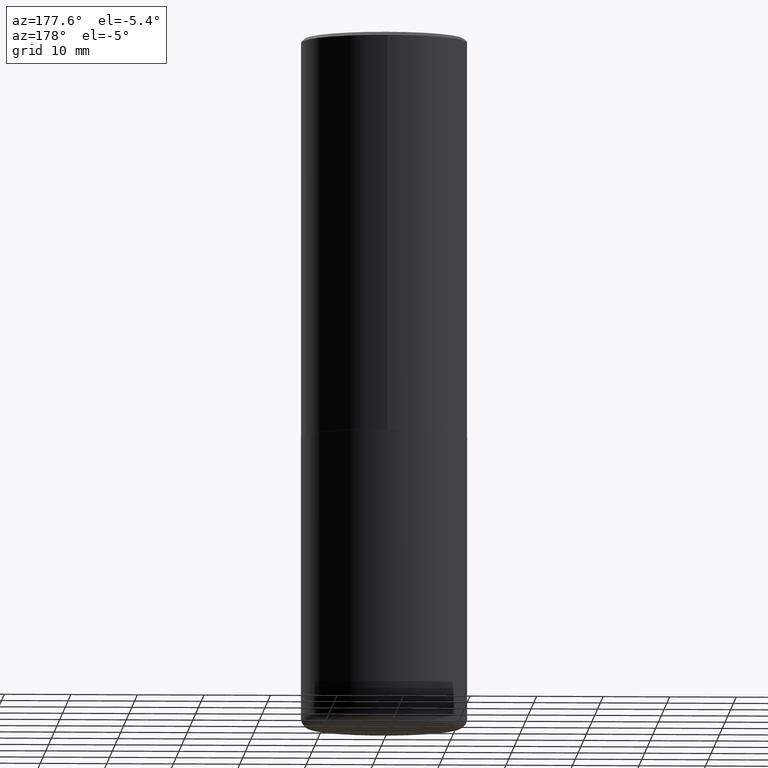
[diagram: clean part render]
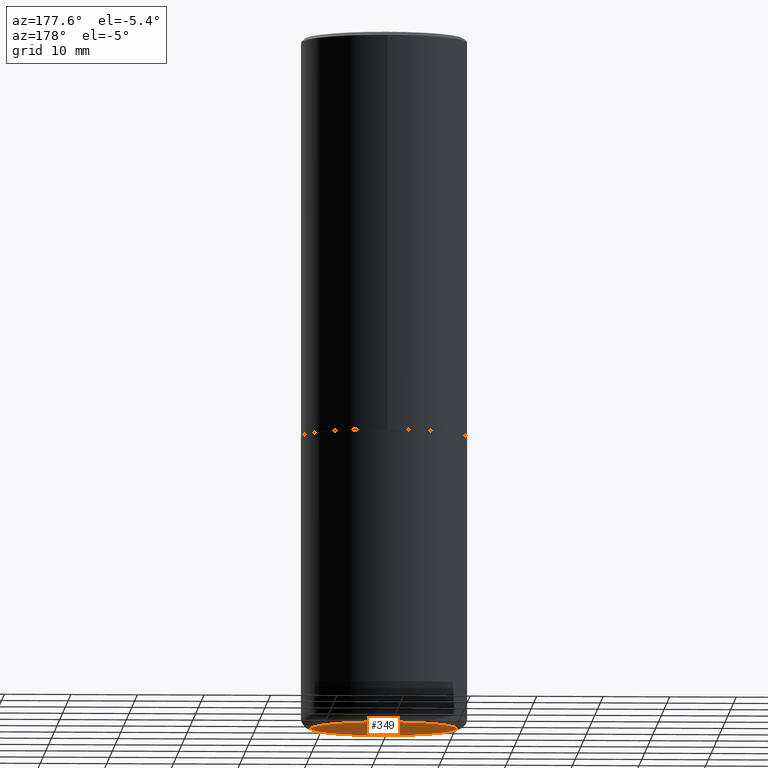
[diagram: same view with one face highlighted and labeled with its STEP entity id]
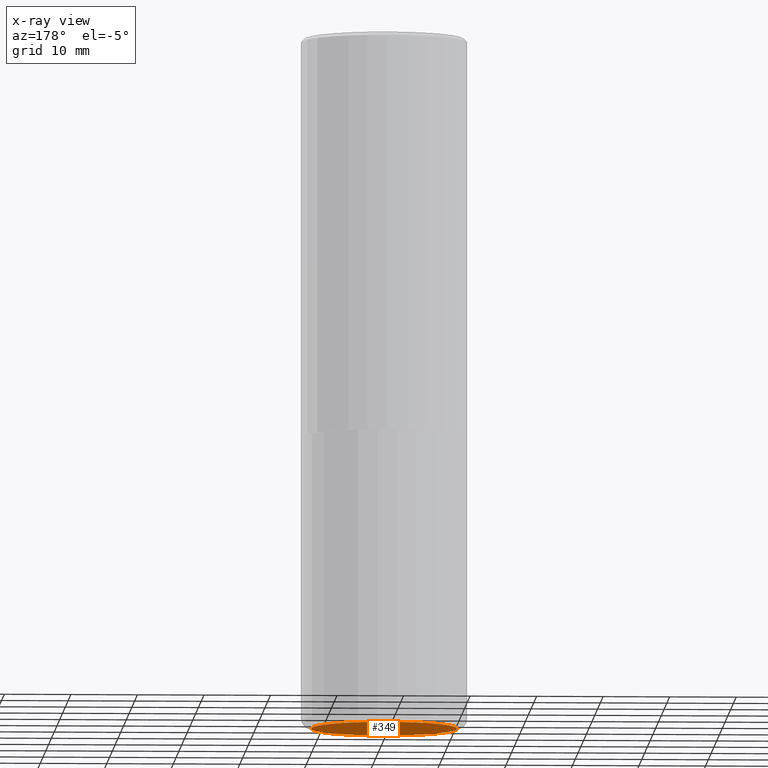
[diagram: x-ray of the same camera — body ghosted, the highlighted face saturated]
A machine part, auxiliary view. The second image highlights one B-rep face of the part: STEP entity #349.
The next image is the same camera in x-ray: the body ghosted, the highlighted face saturated — about 0% of this face is hidden behind the body in this view.
In plain terms, the highlighted planar face has unit normal (0, -0, -1).
Its self-contained STEP definition (entity closure, byte-faithful):
#1 = FACE_OUTER_BOUND ( 'NONE', #240, .T. ) ;
#22 = CARTESIAN_POINT ( 'NONE',  ( 1.001297202692504327E-28, -1.429587034189326465E-14, -4.094500000000000917 ) ) ;
#40 = CARTESIAN_POINT ( 'NONE',  ( -0.4323499999999999566, -1.090699125381078817E-14, -4.094500000000000917 ) ) ;
#53 = EDGE_CURVE ( 'NONE', #132, #69, #198, .T. ) ;
#69 = VERTEX_POINT ( 'NONE', #40 ) ;
#76 = DIRECTION ( 'NONE',  ( 2.438088387897960049E-29, -3.491481338843145188E-15, -1.000000000000000000 ) ) ;
#103 = AXIS2_PLACEMENT_3D ( 'NONE', #22, #406, #272 ) ;
#115 = DIRECTION ( 'NONE',  ( 1.000000000000000000, -6.982962677686265133E-15, 0.000000000000000000 ) ) ;
#132 = VERTEX_POINT ( 'NONE', #295 ) ;
#164 = AXIS2_PLACEMENT_3D ( 'NONE', #187, #76, #310 ) ;
#187 = CARTESIAN_POINT ( 'NONE',  ( 6.399774875433390499E-29, -1.947017431323977898E-14, -4.094500000000000917 ) ) ;
#198 = CIRCLE ( 'NONE', #372, 0.4323499999999999566 ) ;
#215 = PLANE ( 'NONE',  #164 ) ;
#230 = CARTESIAN_POINT ( 'NONE',  ( 1.001297202692504327E-28, -1.429587034189326465E-14, -4.094500000000000917 ) ) ;
#240 = EDGE_LOOP ( 'NONE', ( #360, #260 ) ) ;
#260 = ORIENTED_EDGE ( 'NONE', *, *, #275, .F. ) ;
#272 = DIRECTION ( 'NONE',  ( 1.000000000000000000, -6.982962677686265133E-15, 0.000000000000000000 ) ) ;
#275 = EDGE_CURVE ( 'NONE', #69, #132, #409, .T. ) ;
#295 = CARTESIAN_POINT ( 'NONE',  ( 0.4323499999999999566, -1.731495425559091942E-14, -4.094500000000000917 ) ) ;
#310 = DIRECTION ( 'NONE',  ( -1.000000000000000000, 6.982962677686265922E-15, -4.876176775795935793E-29 ) ) ;
#349 = ADVANCED_FACE ( 'NONE', ( #1 ), #215, .T. ) ;
#360 = ORIENTED_EDGE ( 'NONE', *, *, #53, .F. ) ;
#372 = AXIS2_PLACEMENT_3D ( 'NONE', #230, #415, #115 ) ;
#406 = DIRECTION ( 'NONE',  ( -2.445468806185136597E-29, 3.491481338843145583E-15, 1.000000000000000000 ) ) ;
#409 = CIRCLE ( 'NONE', #103, 0.4323499999999999566 ) ;
#415 = DIRECTION ( 'NONE',  ( -2.445468806185136597E-29, 3.491481338843145583E-15, 1.000000000000000000 ) ) ;